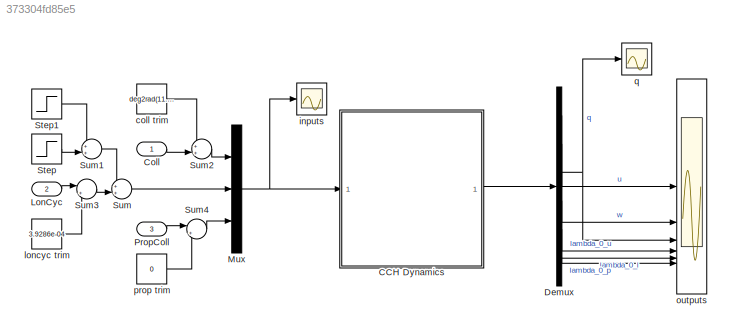
MODEL slx_373304fd85e5
KIND model
CONFIG AbsTol = auto
CONFIG EnableMultiTasking = off
CONFIG FixedStep = auto
CONFIG MaxStep = auto
CONFIG MinStep = auto
CONFIG RelTol = 1e-3
CONFIG SampleTimeConstraint = Unconstrained
CONFIG SolverName = VariableStepAuto
CONFIG StartTime = 0.0
CONFIG StopTime = 20
WORKSPACE source: mxarray member
WORKSPACE op_trim1: opcond.OperatingReport (value not decoded)
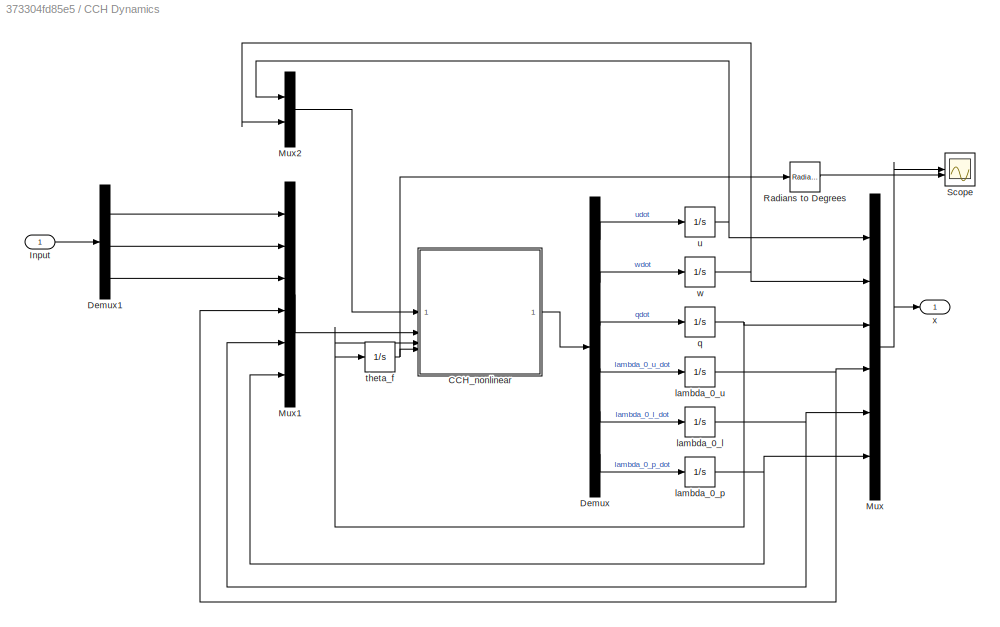
BLOCK [SubSystem] CCH Dynamics
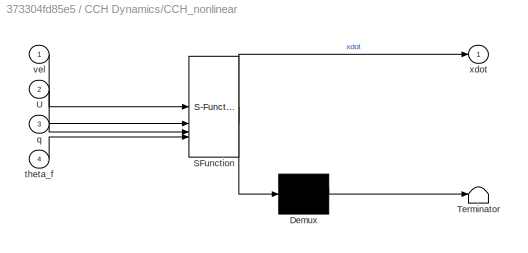
BLOCK [SubSystem] CCH Dynamics/CCH_nonlinear
  ErrorFcn = Stateflow.Translate.translate
  LibrarySourceBlock = simulink/User-Defined\nFunctions/MATLAB Function
  PermitHierarchicalResolution = ExplicitOnly
  SFBlockType = MATLAB Function
  TreatAsAtomicUnit = on
BLOCK [Demux] CCH Dynamics/CCH_nonlinear/ Demux 
  Outputs = 1
BLOCK [S-Function] CCH Dynamics/CCH_nonlinear/ SFunction 
  EnableBusSupport = on
  FunctionName = sf_sfun
  PortCounts = [4 2]
  SFcnIsStateOwnerBlock = off
  SFunctionDeploymentMode = off
  Tag = Stateflow S-Function 2
BLOCK [Terminator] CCH Dynamics/CCH_nonlinear/ Terminator 
BLOCK [Inport] CCH Dynamics/CCH_nonlinear/U
  Port = 2
BLOCK [Inport] CCH Dynamics/CCH_nonlinear/q
  Port = 3
BLOCK [Inport] CCH Dynamics/CCH_nonlinear/theta_f
  Port = 4
BLOCK [Inport] CCH Dynamics/CCH_nonlinear/vel
BLOCK [Outport] CCH Dynamics/CCH_nonlinear/xdot
BLOCK [Demux] CCH Dynamics/Demux
  Outputs = 6
BLOCK [Demux] CCH Dynamics/Demux1
  Outputs = 3
BLOCK [Inport] CCH Dynamics/Input
BLOCK [Mux] CCH Dynamics/Mux
  DisplayOption = bar
  Inputs = 6
BLOCK [Mux] CCH Dynamics/Mux1
  DisplayOption = bar
  Inputs = 6
BLOCK [Mux] CCH Dynamics/Mux2
  DisplayOption = bar
  Inputs = 2
BLOCK [Reference] CCH Dynamics/Radians to Degrees  REF=simulink_extras/Transformations/Radians
to Degrees
  SourceBlock = simulink_extras/Transformations/Radians\nto Degrees
  SourceType = RadiansToDegrees
BLOCK [Scope] CCH Dynamics/Scope
  Floating = off
  NumInputPorts = 2
  ScopeSpecificationString = Simulink.scopes.TimeScopeBlockCfg('CurrentConfiguration', extmgr.ConfigurationSet(extmgr.Configuration('Core','General UI',true),extmgr.Configuration('Core','Source UI',true),extmgr.Configuration('Sources','WiredSimulink',true,'DataLoggingVariableName','ScopeData1'),extmgr.Configuration('Visuals','Time Domain',true,'SerializedDisplays',{struct('MinYLimReal','-505.36227','MaxYLimReal','429.09062','...<+1513ch>
BLOCK [Integrator] CCH Dynamics/lambda_0_l
BLOCK [Integrator] CCH Dynamics/lambda_0_p
BLOCK [Integrator] CCH Dynamics/lambda_0_u
BLOCK [Integrator] CCH Dynamics/q
BLOCK [Integrator] CCH Dynamics/theta_f
BLOCK [Integrator] CCH Dynamics/u
BLOCK [Integrator] CCH Dynamics/w
BLOCK [Outport] CCH Dynamics/x
BLOCK [Inport] Coll
BLOCK [Demux] Demux
  Outputs = 6
BLOCK [Inport] LonCyc
  Port = 2
BLOCK [Mux] Mux
  DisplayOption = bar
  Inputs = 3
BLOCK [Inport] PropColl
  Port = 3
BLOCK [Step] Step
  After = deg2rad(1)
  SampleTime = 0
BLOCK [Step] Step1
  After = -deg2rad(1)
  SampleTime = 0
  Time = 2
BLOCK [Sum] Sum
  Inputs = ++|
BLOCK [Sum] Sum1
  Inputs = ++|
BLOCK [Sum] Sum2
  Inputs = ++|
BLOCK [Sum] Sum3
  Inputs = |++
BLOCK [Sum] Sum4
  Inputs = |++
BLOCK [Constant] coll trim
  Value = deg2rad(11.5255)
BLOCK [Scope] inputs
  Floating = off
  NumInputPorts = 1
  ScopeSpecificationString = Simulink.scopes.TimeScopeBlockCfg('CurrentConfiguration', extmgr.ConfigurationSet(extmgr.Configuration('Core','General UI',true),extmgr.Configuration('Core','Source UI',true),extmgr.Configuration('Sources','WiredSimulink',true,'DataLoggingVariableName','ScopeData1'),extmgr.Configuration('Visuals','Time Domain',true,'SerializedDisplays',{struct('MinYLimReal','-0.02514','MaxYLimReal','0.2263','YLabe...<+1399ch>
BLOCK [Constant] loncyc trim
  Value = 3.9286e-04
BLOCK [Scope] outputs
  Floating = off
  NumInputPorts = 6
  ScopeSpecificationString = Simulink.scopes.TimeScopeBlockCfg('CurrentConfiguration', extmgr.ConfigurationSet(extmgr.Configuration('Core','General UI',true),extmgr.Configuration('Core','Source UI',true),extmgr.Configuration('Sources','WiredSimulink',true),extmgr.Configuration('Visuals','Time Domain',true,'SerializedDisplays',{struct('MinYLimReal','-1.00000','MaxYLimReal','1.00000','YLabelReal','','MinYLimMag','0.00000','MaxY...<+1395ch>
BLOCK [Constant] prop trim
  Value = 0
BLOCK [Scope] q
  Floating = off
  NumInputPorts = 1
  ScopeSpecificationString = Simulink.scopes.TimeScopeBlockCfg('CurrentConfiguration', extmgr.ConfigurationSet(extmgr.Configuration('Core','General UI',true),extmgr.Configuration('Core','Source UI',true),extmgr.Configuration('Sources','WiredSimulink',true,'DataLoggingVariableName','ScopeData3'),extmgr.Configuration('Visuals','Time Domain',true,'SerializedDisplays',{struct('MinYLimReal','-1.00000','MaxYLimReal','1.00000','YLab...<+1387ch>
LINE CCH Dynamics/CCH_nonlinear:1 -> CCH Dynamics/Demux:1
LINE CCH Dynamics/Demux1:1 -> CCH Dynamics/Mux1:1
LINE CCH Dynamics/Demux1:2 -> CCH Dynamics/Mux1:2
LINE CCH Dynamics/Demux1:3 -> CCH Dynamics/Mux1:3
LINE CCH Dynamics/Demux:1 -> CCH Dynamics/u:1
LINE CCH Dynamics/Demux:2 -> CCH Dynamics/w:1
LINE CCH Dynamics/Demux:3 -> CCH Dynamics/q:1
LINE CCH Dynamics/Demux:4 -> CCH Dynamics/lambda_0_u:1
LINE CCH Dynamics/Demux:5 -> CCH Dynamics/lambda_0_l:1
LINE CCH Dynamics/Demux:6 -> CCH Dynamics/lambda_0_p:1
LINE CCH Dynamics/Input:1 -> CCH Dynamics/Demux1:1
LINE CCH Dynamics/Mux1:1 -> CCH Dynamics/CCH_nonlinear:2
LINE CCH Dynamics/Mux2:1 -> CCH Dynamics/CCH_nonlinear:1
NET CCH Dynamics/Mux:1 -> CCH Dynamics/Scope:1, CCH Dynamics/x:1
LINE CCH Dynamics/Radians to Degrees:1 -> CCH Dynamics/Scope:2
NET CCH Dynamics/lambda_0_l:1 -> CCH Dynamics/Mux1:5, CCH Dynamics/Mux:5
NET CCH Dynamics/lambda_0_p:1 -> CCH Dynamics/Mux1:6, CCH Dynamics/Mux:6
NET CCH Dynamics/lambda_0_u:1 -> CCH Dynamics/Mux1:4, CCH Dynamics/Mux:4
NET CCH Dynamics/q:1 -> CCH Dynamics/CCH_nonlinear:3, CCH Dynamics/Mux:3, CCH Dynamics/theta_f:1
NET CCH Dynamics/theta_f:1 -> CCH Dynamics/CCH_nonlinear:4, CCH Dynamics/Radians to Degrees:1
NET CCH Dynamics/u:1 -> CCH Dynamics/Mux2:1, CCH Dynamics/Mux:1
NET CCH Dynamics/w:1 -> CCH Dynamics/Mux2:2, CCH Dynamics/Mux:2
LINE CCH Dynamics:1 -> Demux:1
LINE Coll:1 -> Sum2:2
LINE Demux:1 -> outputs:1
LINE Demux:2 -> outputs:2
NET Demux:3 -> outputs:3, q:1
LINE Demux:4 -> outputs:4
LINE Demux:5 -> outputs:5
LINE Demux:6 -> outputs:6
LINE LonCyc:1 -> Sum3:1
NET Mux:1 -> CCH Dynamics:1, inputs:1
LINE PropColl:1 -> Sum4:1
LINE Step1:1 -> Sum1:1
LINE Step:1 -> Sum1:2
LINE Sum1:1 -> Sum:1
LINE Sum2:1 -> Mux:1
LINE Sum3:1 -> Sum:2
LINE Sum4:1 -> Mux:3
LINE Sum:1 -> Mux:2
LINE coll trim:1 -> Sum2:1
LINE loncyc trim:1 -> Sum3:2
LINE prop trim:1 -> Sum4:2
note: NET lines group one-source signal fan-out (src -> all destinations, sorted); 1:1 wires keep LINE
CHART CCH Dynamics/CCH_nonlinear states=1 transitions=1
  STATE_LABEL 'eML_blk_kernel()'
  STATE_LABEL 'SCRIPT:\nfunction xdot = CCH_nonlinear(vel, U, q, theta_f)\n\n    %% Load helicopter parameters\n    % Atmospheric Data\n    g = 9.80665;\n    rho = 1.225;\n\n    % CG Positions\n    x_cg = -0.0164;\n    y_cg = 0;\n    z_cg = 0;\n    \n    % General Planform Data\n    mass = 5500;                % Su et al. 2023\n    W = mass*g;\n    Ixx = 3400;\n    Ixz = 2500;\n    Iyy = 16000;                % educated guess \n  ...<+3608ch>'
CHART  states=0 transitions=0
